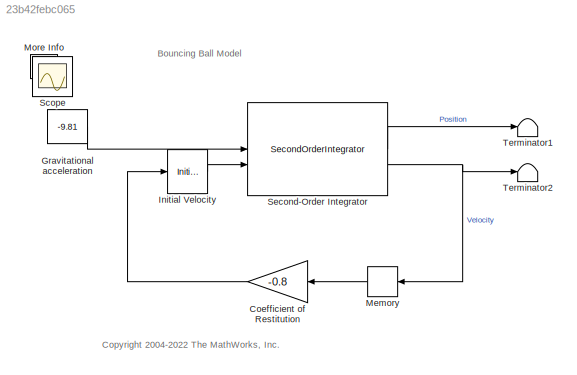
MODEL slx_23b42febc065
KIND model
CONFIG AbsTol = 1E-6
CONFIG EnableMultiTasking = on
CONFIG FixedStep = auto
CONFIG MaxStep = 0.01
CONFIG MinStep = auto
CONFIG RelTol = 1e-3
CONFIG SampleTimeConstraint = Unconstrained
CONFIG SolverName = ode23
CONFIG StartTime = 0.0
CONFIG StopTime = 25
BLOCK [Gain] Coefficient of Restitution
  Gain = -0.8
BLOCK [Constant] Gravitational acceleration
  OutDataTypeStr = double
  Value = -9.81
BLOCK [InitialCondition] Initial Velocity 
  Value = 0
BLOCK [Memory] Memory
BLOCK [SubSystem] More Info
  OpenFcn = showExample('simulink_general/sldemo_bounceExample')
BLOCK [Scope] Scope
  Floating = off
  IOType = viewer
  NumInputPorts = 1
  ScopeSpecificationString = Simulink.scopes.TimeScopeBlockCfg('CurrentConfiguration', extmgr.ConfigurationSet(extmgr.Configuration('Core','General UI',true),extmgr.Configuration('Core','Source UI',true),extmgr.Configuration('Sources','WiredSimulink',true,'DataLoggingMaxPoints','7500','DataLoggingSaveFormat','Array','DataLoggingDecimation','1','DataLoggingDecimateData',true),extmgr.Configuration('Visuals','Time Domain',true,'...<+2266ch>
BLOCK [SecondOrderIntegrator] Second-Order Integrator
  ICSourceDXDT = external
  ICX = 25.0
  LimitX = on
  LowerLimitX = 0.0
  ReinitDXDTwhenXreachesSaturation = on
  StateNameDXDT = 'Velocity'
  StateNameX = 'Position'
BLOCK [Terminator] Terminator1
BLOCK [Terminator] Terminator2
ANNOTATION (root): Bouncing Ball Model
ANNOTATION (root): <copyright redacted>
LINE Coefficient of Restitution:1 -> Initial Velocity :1
LINE Gravitational acceleration:1 -> Second-Order Integrator:1
LINE Initial Velocity :1 -> Second-Order Integrator:2
LINE Memory:1 -> Coefficient of Restitution:1
LINE Second-Order Integrator:1 -> Terminator1:1
NET Second-Order Integrator:2 -> Memory:1, Terminator2:1
note: NET lines group one-source signal fan-out (src -> all destinations, sorted); 1:1 wires keep LINE
